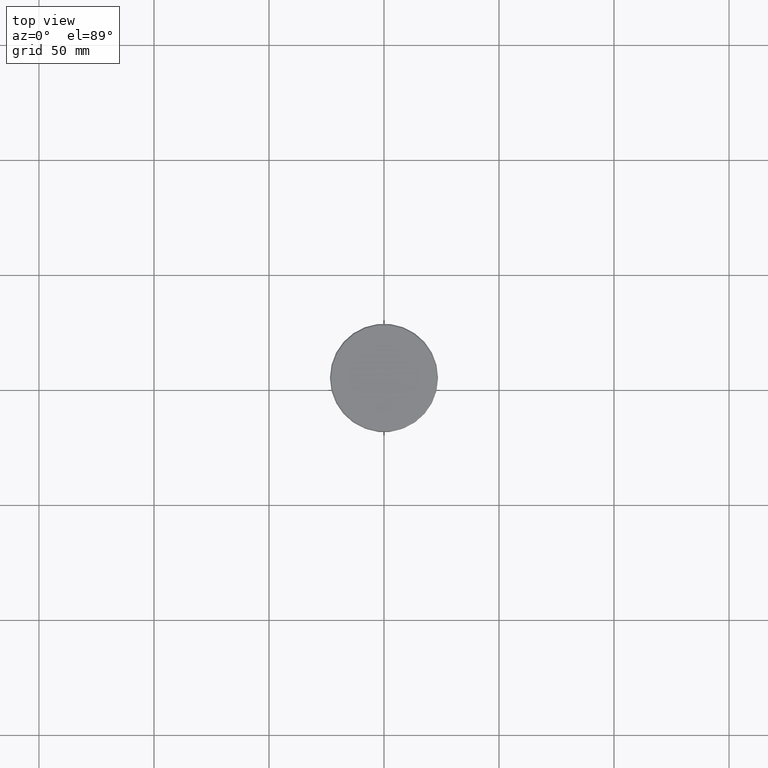
[diagram: clean part render]
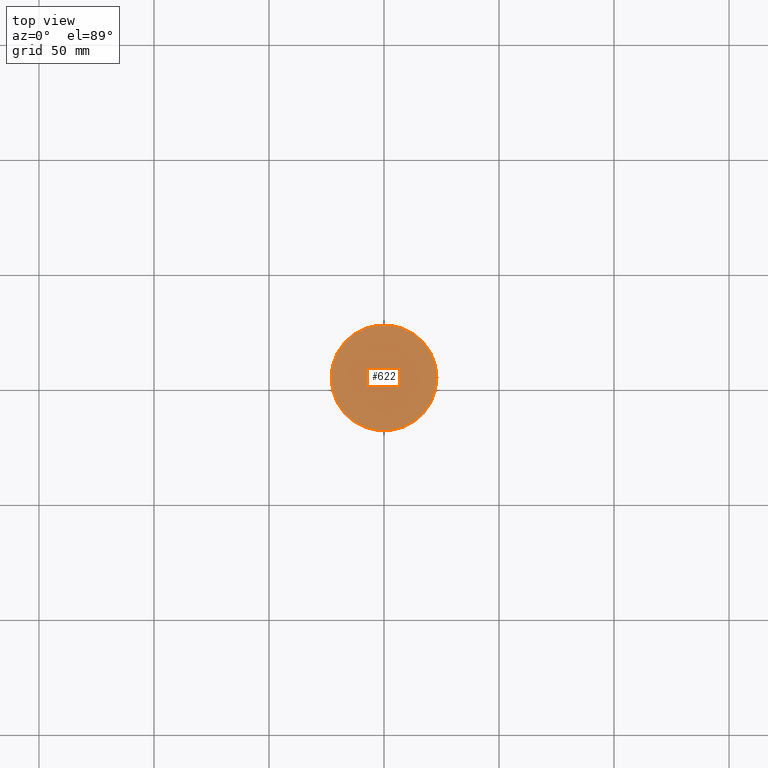
[diagram: same view with one face highlighted and labeled with its STEP entity id]
A machine part, top view. The second image highlights one B-rep face of the part: STEP entity #622.
In plain terms, the highlighted planar face has unit normal (0, -0, 1).
Its self-contained STEP definition (entity closure, byte-faithful):
#31 = DIRECTION ( 'NONE',  ( 1.000000000000000000, 0.000000000000000000, 0.000000000000000000 ) ) ;
#44 = DIRECTION ( 'NONE',  ( -0.000000000000000000, -0.000000000000000000, 1.000000000000000000 ) ) ;
#45 = DIRECTION ( 'NONE',  ( -0.000000000000000000, -0.000000000000000000, 1.000000000000000000 ) ) ;
#92 = CIRCLE ( 'NONE', #352, 23.00000000000002487 ) ;
#139 = DIRECTION ( 'NONE',  ( 1.000000000000000000, 0.000000000000000000, 0.000000000000000000 ) ) ;
#269 = CARTESIAN_POINT ( 'NONE',  ( 0.000000000000000000, 0.000000000000000000, 0.000000000000000000 ) ) ;
#298 = CARTESIAN_POINT ( 'NONE',  ( 0.000000000000000000, 0.000000000000000000, 0.000000000000000000 ) ) ;
#311 = VERTEX_POINT ( 'NONE', #818 ) ;
#330 = AXIS2_PLACEMENT_3D ( 'NONE', #860, #44, #139 ) ;
#336 = DIRECTION ( 'NONE',  ( 0.000000000000000000, -0.000000000000000000, 1.000000000000000000 ) ) ;
#352 = AXIS2_PLACEMENT_3D ( 'NONE', #298, #45, #31 ) ;
#419 = PLANE ( 'NONE',  #429 ) ;
#429 = AXIS2_PLACEMENT_3D ( 'NONE', #269, #336, #1144 ) ;
#537 = EDGE_CURVE ( 'NONE', #311, #910, #92, .T. ) ;
#622 = ADVANCED_FACE ( 'NONE', ( #867 ), #419, .T. ) ;
#656 = EDGE_LOOP ( 'NONE', ( #880, #769 ) ) ;
#755 = CARTESIAN_POINT ( 'NONE',  ( 23.00000000000002487, 2.847303808017597717E-15, 0.000000000000000000 ) ) ;
#769 = ORIENTED_EDGE ( 'NONE', *, *, #989, .T. ) ;
#818 = CARTESIAN_POINT ( 'NONE',  ( -23.00000000000002487, 0.000000000000000000, 0.000000000000000000 ) ) ;
#835 = CIRCLE ( 'NONE', #330, 23.00000000000002487 ) ;
#860 = CARTESIAN_POINT ( 'NONE',  ( 0.000000000000000000, 0.000000000000000000, 0.000000000000000000 ) ) ;
#867 = FACE_OUTER_BOUND ( 'NONE', #656, .T. ) ;
#880 = ORIENTED_EDGE ( 'NONE', *, *, #537, .T. ) ;
#910 = VERTEX_POINT ( 'NONE', #755 ) ;
#989 = EDGE_CURVE ( 'NONE', #910, #311, #835, .T. ) ;
#1144 = DIRECTION ( 'NONE',  ( 1.000000000000000000, 0.000000000000000000, 0.000000000000000000 ) ) ;